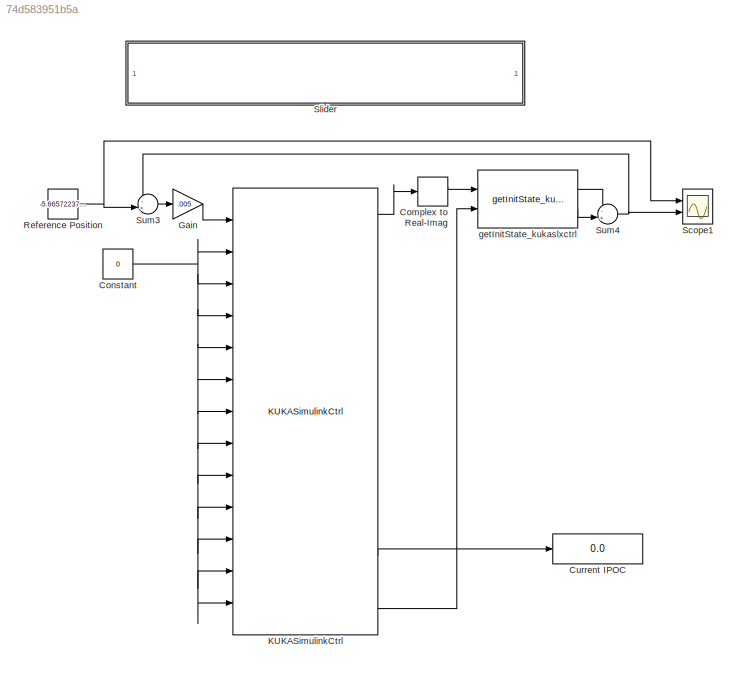
MODEL slx_74d583951b5a
KIND model
CONFIG AbsTol = auto
CONFIG FixedStep = 0.001
CONFIG MaxStep = auto
CONFIG MinStep = auto
CONFIG RelTol = 1e-3
CONFIG SampleTimeConstraint = Unconstrained
CONFIG Solver = ode5
CONFIG SolverMode = Auto
CONFIG SolverName = ode5
CONFIG StartTime = 0.0
CONFIG StopTime = inf
BLOCK [ComplexToRealImag] Complex to Real-Imag
  Ports = [1, 2]
BLOCK [Constant] Constant
  Value = 0
BLOCK [Display] Current IPOC
  Decimation = 1
  Ports = [1]
BLOCK [Gain] Gain
  Gain = .005
  OutDataTypeStr = Inherit: Inherit via internal rule
  ParamDataTypeStr = Inherit: Inherit via internal rule
  SaturateOnIntegerOverflow = off
BLOCK [Reference] KUKASimulinkCtrl  REF=kukaslxctrl/KUKASimulinkCtrl  (lib defined in slx_03d93a5889d5, slx_da8e6fcdb2ed)
  Ports = [13, 16]
  SourceBlock = kukaslxctrl/KUKASimulinkCtrl
  SourceType = KUKASimulinkCtrl
BLOCK [Constant] Reference Position
  Value = -5.66572237960338
BLOCK [Scope] Scope1
  NumInputPorts = 2
  Ports = [2]
  ScopeSpecificationString = Simulink.scopes.TimeScopeBlockCfg('CurrentConfiguration', extmgr.ConfigurationSet(extmgr.Configuration('Core','General UI',true),extmgr.Configuration('Core','Source UI',true),extmgr.Configuration('Sources','WiredSimulink',true),extmgr.Configuration('Visuals','Time Domain',true,'SerializedDisplays',{struct('MinYLimReal','-29.84551','MaxYLimReal','268.60955','YLabelReal','','MinYLimMag','0.00000','M...<+1472ch>
BLOCK [SubSystem] Slider
  DialogController = hmiCreateDDGDialog
  IsWebBlock = on
  MaskHideContents = on
  Ports = []
  RequestExecContextInheritance = off
  Variant = off
BLOCK [Sum] Sum3
  IconShape = round
  InputSameDT = off
  Inputs = -+|
  OutDataTypeStr = Inherit: Inherit via internal rule
  Ports = [2, 1]
  SaturateOnIntegerOverflow = off
BLOCK [Sum] Sum4
  IconShape = round
  InputSameDT = off
  Inputs = -+|
  OutDataTypeStr = Inherit: Inherit via internal rule
  Ports = [2, 1]
  SaturateOnIntegerOverflow = off
BLOCK [Reference] getInitState_kukaslxctrl  REF=kukaslxctrl/getInitState_kukaslxctrl  (lib defined in slx_03d93a5889d5, slx_da8e6fcdb2ed)
  Ports = [2, 2]
  SourceBlock = kukaslxctrl/getInitState_kukaslxctrl
  SourceType = Initial State Capture
LINE Complex to Real-Imag:1 -> getInitState_kukaslxctrl:1
NET Constant:1 -> KUKASimulinkCtrl:10, KUKASimulinkCtrl:11, KUKASimulinkCtrl:12, KUKASimulinkCtrl:13, KUKASimulinkCtrl:2, KUKASimulinkCtrl:3, KUKASimulinkCtrl:4, KUKASimulinkCtrl:5, KUKASimulinkCtrl:6, KUKASimulinkCtrl:7, KUKASimulinkCtrl:8, KUKASimulinkCtrl:9
LINE Gain:1 -> KUKASimulinkCtrl:1
LINE KUKASimulinkCtrl:1 -> Complex to Real-Imag:1
LINE KUKASimulinkCtrl:14 -> Current IPOC:1
LINE KUKASimulinkCtrl:16 -> getInitState_kukaslxctrl:2
NET Reference Position:1 -> Scope1:1, Sum3:2
LINE Sum3:1 -> Gain:1
NET Sum4:1 -> Scope1:2, Sum3:1
LINE getInitState_kukaslxctrl:1 -> Sum4:1
LINE getInitState_kukaslxctrl:2 -> Sum4:2
note: NET lines group one-source signal fan-out (src -> all destinations, sorted); 1:1 wires keep LINE
